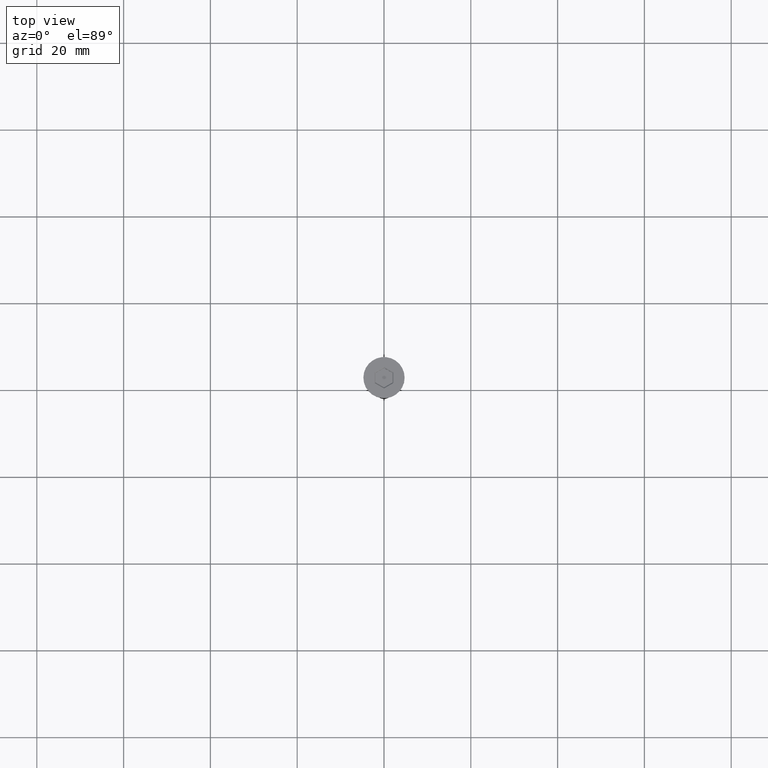
[diagram: clean part render]
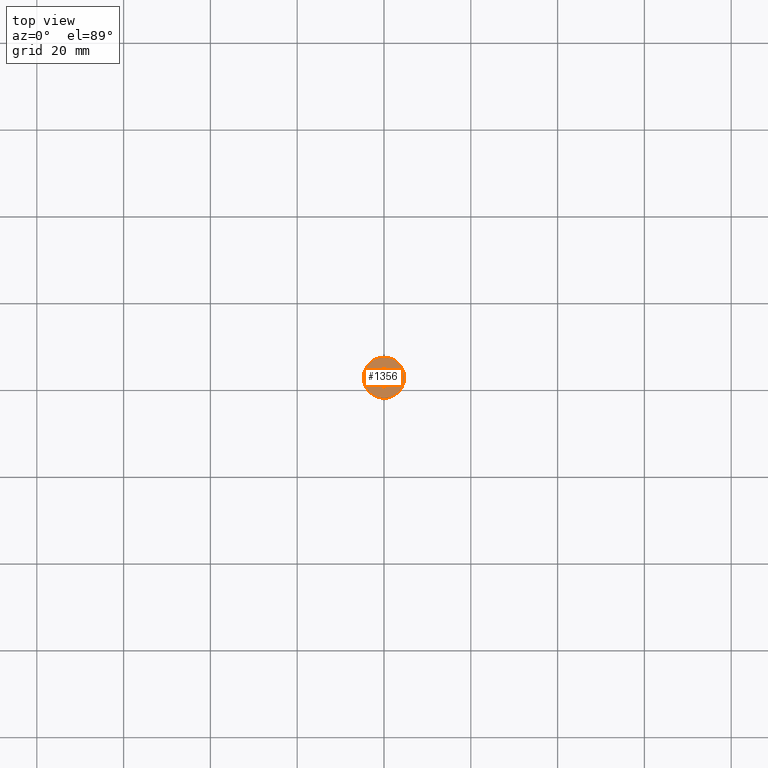
[diagram: same view with one face highlighted and labeled with its STEP entity id]
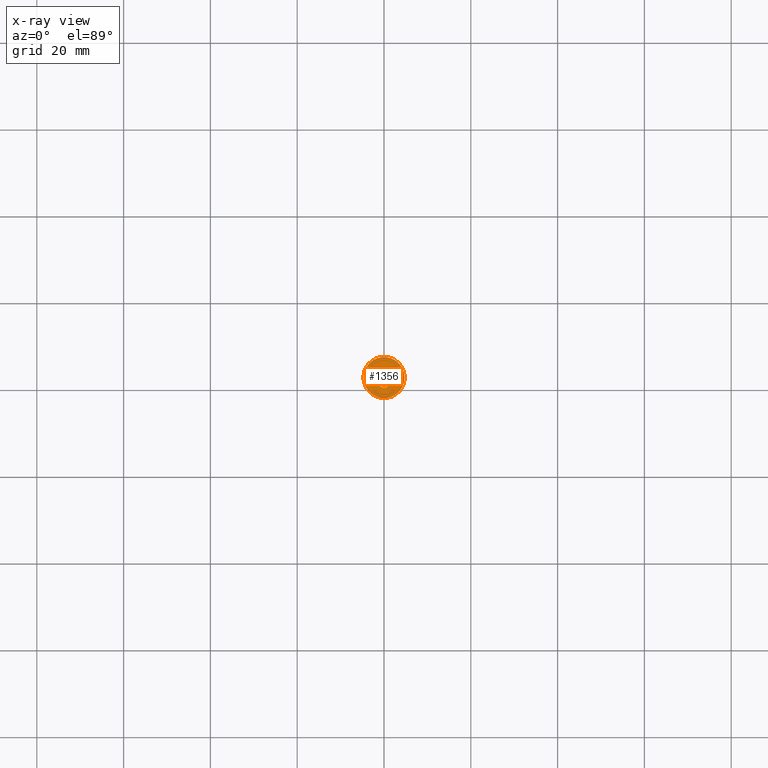
[diagram: x-ray of the same camera — body ghosted, the highlighted face saturated]
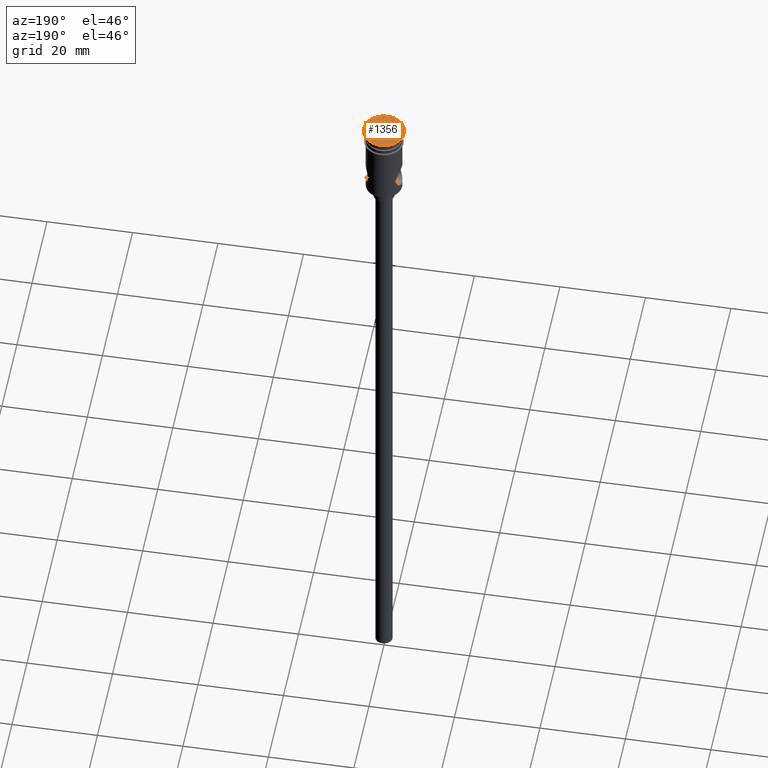
[diagram: same view with one face highlighted and labeled with its STEP entity id]
A machine part, top view. The second image highlights one B-rep face of the part: STEP entity #1356.
The next image is the same camera in x-ray: the body ghosted, the highlighted face saturated — about 0% of this face is hidden behind the body in this view.
A second angle (auxiliary view) of the same face is appended — the face is thin or edge-on in the first view.
In plain terms, the highlighted planar face has unit normal (0, -0, 1).
Its self-contained STEP definition (entity closure, byte-faithful):
#70 = DIRECTION ( 'NONE',  ( -1.926044357355332218E-16, -1.000000000000000000, 0.000000000000000000 ) ) ;
#102 = DIRECTION ( 'NONE',  ( 1.000000000000000000, 0.000000000000000000, 0.000000000000000000 ) ) ;
#107 = EDGE_CURVE ( 'NONE', #968, #1172, #279, .T. ) ;
#122 = VECTOR ( 'NONE', #822, 1000.000000000000000 ) ;
#181 = CARTESIAN_POINT ( 'NONE',  ( 3.449642192269546890E-16, 2.482606157515383494, 0.000000000000000000 ) ) ;
#200 = FACE_BOUND ( 'NONE', #595, .T. ) ;
#202 = CIRCLE ( 'NONE', #1236, 4.750000000000000000 ) ;
#254 = CARTESIAN_POINT ( 'NONE',  ( -0.09999999999999699407, 2.424871130596422564, 0.000000000000000000 ) ) ;
#267 = ORIENTED_EDGE ( 'NONE', *, *, #722, .T. ) ;
#279 = LINE ( 'NONE', #394, #614 ) ;
#298 = EDGE_CURVE ( 'NONE', #1026, #1262, #600, .T. ) ;
#304 = EDGE_CURVE ( 'NONE', #1172, #1269, #1047, .T. ) ;
#313 = CARTESIAN_POINT ( 'NONE',  ( 4.750000000000000000, 0.000000000000000000, 0.000000000000000000 ) ) ;
#316 = DIRECTION ( 'NONE',  ( -0.000000000000000000, -0.000000000000000000, 1.000000000000000000 ) ) ;
#335 = DIRECTION ( 'NONE',  ( 0.8660254037844385966, -0.5000000000000001110, 0.000000000000000000 ) ) ;
#356 = DIRECTION ( 'NONE',  ( 1.000000000000000000, 0.000000000000000000, 0.000000000000000000 ) ) ;
#373 = ORIENTED_EDGE ( 'NONE', *, *, #987, .T. ) ;
#380 = EDGE_CURVE ( 'NONE', #1146, #1026, #720, .T. ) ;
#384 = CARTESIAN_POINT ( 'NONE',  ( 2.149999999999993250, 1.241303078757691969, 0.000000000000000000 ) ) ;
#388 = VECTOR ( 'NONE', #468, 1000.000000000000114 ) ;
#394 = CARTESIAN_POINT ( 'NONE',  ( 2.149999999999992806, -1.125833024919770331, 0.000000000000000000 ) ) ;
#447 = CARTESIAN_POINT ( 'NONE',  ( 2.049999999999996714, 1.299038105676652455, 0.000000000000000000 ) ) ;
#449 = ORIENTED_EDGE ( 'NONE', *, *, #304, .T. ) ;
#468 = DIRECTION ( 'NONE',  ( -0.8660254037844385966, 0.5000000000000001110, 0.000000000000000000 ) ) ;
#490 = ORIENTED_EDGE ( 'NONE', *, *, #380, .T. ) ;
#537 = CIRCLE ( 'NONE', #1341, 4.750000000000000000 ) ;
#550 = CARTESIAN_POINT ( 'NONE',  ( 0.000000000000000000, 0.000000000000000000, 0.000000000000000000 ) ) ;
#560 = VECTOR ( 'NONE', #335, 1000.000000000000114 ) ;
#595 = EDGE_LOOP ( 'NONE', ( #267, #490, #1258, #796, #1201, #449 ) ) ;
#600 = LINE ( 'NONE', #254, #806 ) ;
#614 = VECTOR ( 'NONE', #70, 1000.000000000000000 ) ;
#665 = EDGE_CURVE ( 'NONE', #1262, #968, #782, .T. ) ;
#669 = VERTEX_POINT ( 'NONE', #1039 ) ;
#703 = DIRECTION ( 'NONE',  ( 0.8660254037844385966, 0.5000000000000002220, 0.000000000000000000 ) ) ;
#720 = LINE ( 'NONE', #1256, #961 ) ;
#722 = EDGE_CURVE ( 'NONE', #1269, #1146, #1118, .T. ) ;
#782 = LINE ( 'NONE', #447, #560 ) ;
#796 = ORIENTED_EDGE ( 'NONE', *, *, #665, .T. ) ;
#806 = VECTOR ( 'NONE', #703, 999.9999999999998863 ) ;
#816 = EDGE_CURVE ( 'NONE', #1349, #669, #537, .T. ) ;
#822 = DIRECTION ( 'NONE',  ( -0.8660254037844387076, -0.4999999999999998335, 0.000000000000000000 ) ) ;
#880 = CARTESIAN_POINT ( 'NONE',  ( 0.000000000000000000, 0.000000000000000000, 0.000000000000000000 ) ) ;
#888 = DIRECTION ( 'NONE',  ( 1.000000000000000000, 0.000000000000000000, 0.000000000000000000 ) ) ;
#911 = CARTESIAN_POINT ( 'NONE',  ( 2.149999999999992806, -1.241303078757692413, 0.000000000000000000 ) ) ;
#961 = VECTOR ( 'NONE', #1343, 1000.000000000000000 ) ;
#966 = FACE_OUTER_BOUND ( 'NONE', #1102, .T. ) ;
#968 = VERTEX_POINT ( 'NONE', #384 ) ;
#987 = EDGE_CURVE ( 'NONE', #669, #1349, #202, .T. ) ;
#1004 = CARTESIAN_POINT ( 'NONE',  ( -2.149999999999994138, 1.241303078757690859, 0.000000000000000000 ) ) ;
#1026 = VERTEX_POINT ( 'NONE', #1004 ) ;
#1027 = CARTESIAN_POINT ( 'NONE',  ( 0.09999999999999617528, -2.424871130596422564, 0.000000000000000000 ) ) ;
#1039 = CARTESIAN_POINT ( 'NONE',  ( -4.750000000000000000, 5.817072295949927426E-16, 0.000000000000000000 ) ) ;
#1047 = LINE ( 'NONE', #1027, #122 ) ;
#1102 = EDGE_LOOP ( 'NONE', ( #1159, #373 ) ) ;
#1107 = AXIS2_PLACEMENT_3D ( 'NONE', #550, #1187, #102 ) ;
#1118 = LINE ( 'NONE', #1245, #388 ) ;
#1146 = VERTEX_POINT ( 'NONE', #1348 ) ;
#1159 = ORIENTED_EDGE ( 'NONE', *, *, #816, .T. ) ;
#1172 = VERTEX_POINT ( 'NONE', #911 ) ;
#1187 = DIRECTION ( 'NONE',  ( 0.000000000000000000, -0.000000000000000000, 1.000000000000000000 ) ) ;
#1201 = ORIENTED_EDGE ( 'NONE', *, *, #107, .T. ) ;
#1212 = PLANE ( 'NONE',  #1107 ) ;
#1226 = DIRECTION ( 'NONE',  ( -0.000000000000000000, -0.000000000000000000, 1.000000000000000000 ) ) ;
#1236 = AXIS2_PLACEMENT_3D ( 'NONE', #880, #316, #888 ) ;
#1241 = CARTESIAN_POINT ( 'NONE',  ( 0.000000000000000000, 0.000000000000000000, 0.000000000000000000 ) ) ;
#1245 = CARTESIAN_POINT ( 'NONE',  ( -2.049999999999997602, -1.299038105676652011, 0.000000000000000000 ) ) ;
#1256 = CARTESIAN_POINT ( 'NONE',  ( -2.149999999999994138, 1.125833024919770109, 0.000000000000000000 ) ) ;
#1258 = ORIENTED_EDGE ( 'NONE', *, *, #298, .T. ) ;
#1262 = VERTEX_POINT ( 'NONE', #181 ) ;
#1269 = VERTEX_POINT ( 'NONE', #1384 ) ;
#1341 = AXIS2_PLACEMENT_3D ( 'NONE', #1241, #1226, #356 ) ;
#1343 = DIRECTION ( 'NONE',  ( 9.630221786776664787E-17, 1.000000000000000000, 0.000000000000000000 ) ) ;
#1348 = CARTESIAN_POINT ( 'NONE',  ( -2.149999999999994582, -1.241303078757691303, 0.000000000000000000 ) ) ;
#1349 = VERTEX_POINT ( 'NONE', #313 ) ;
#1356 = ADVANCED_FACE ( 'NONE', ( #200, #966 ), #1212, .T. ) ;
#1384 = CARTESIAN_POINT ( 'NONE',  ( -6.517717499969021618E-16, -2.482606157515383050, 0.000000000000000000 ) ) ;